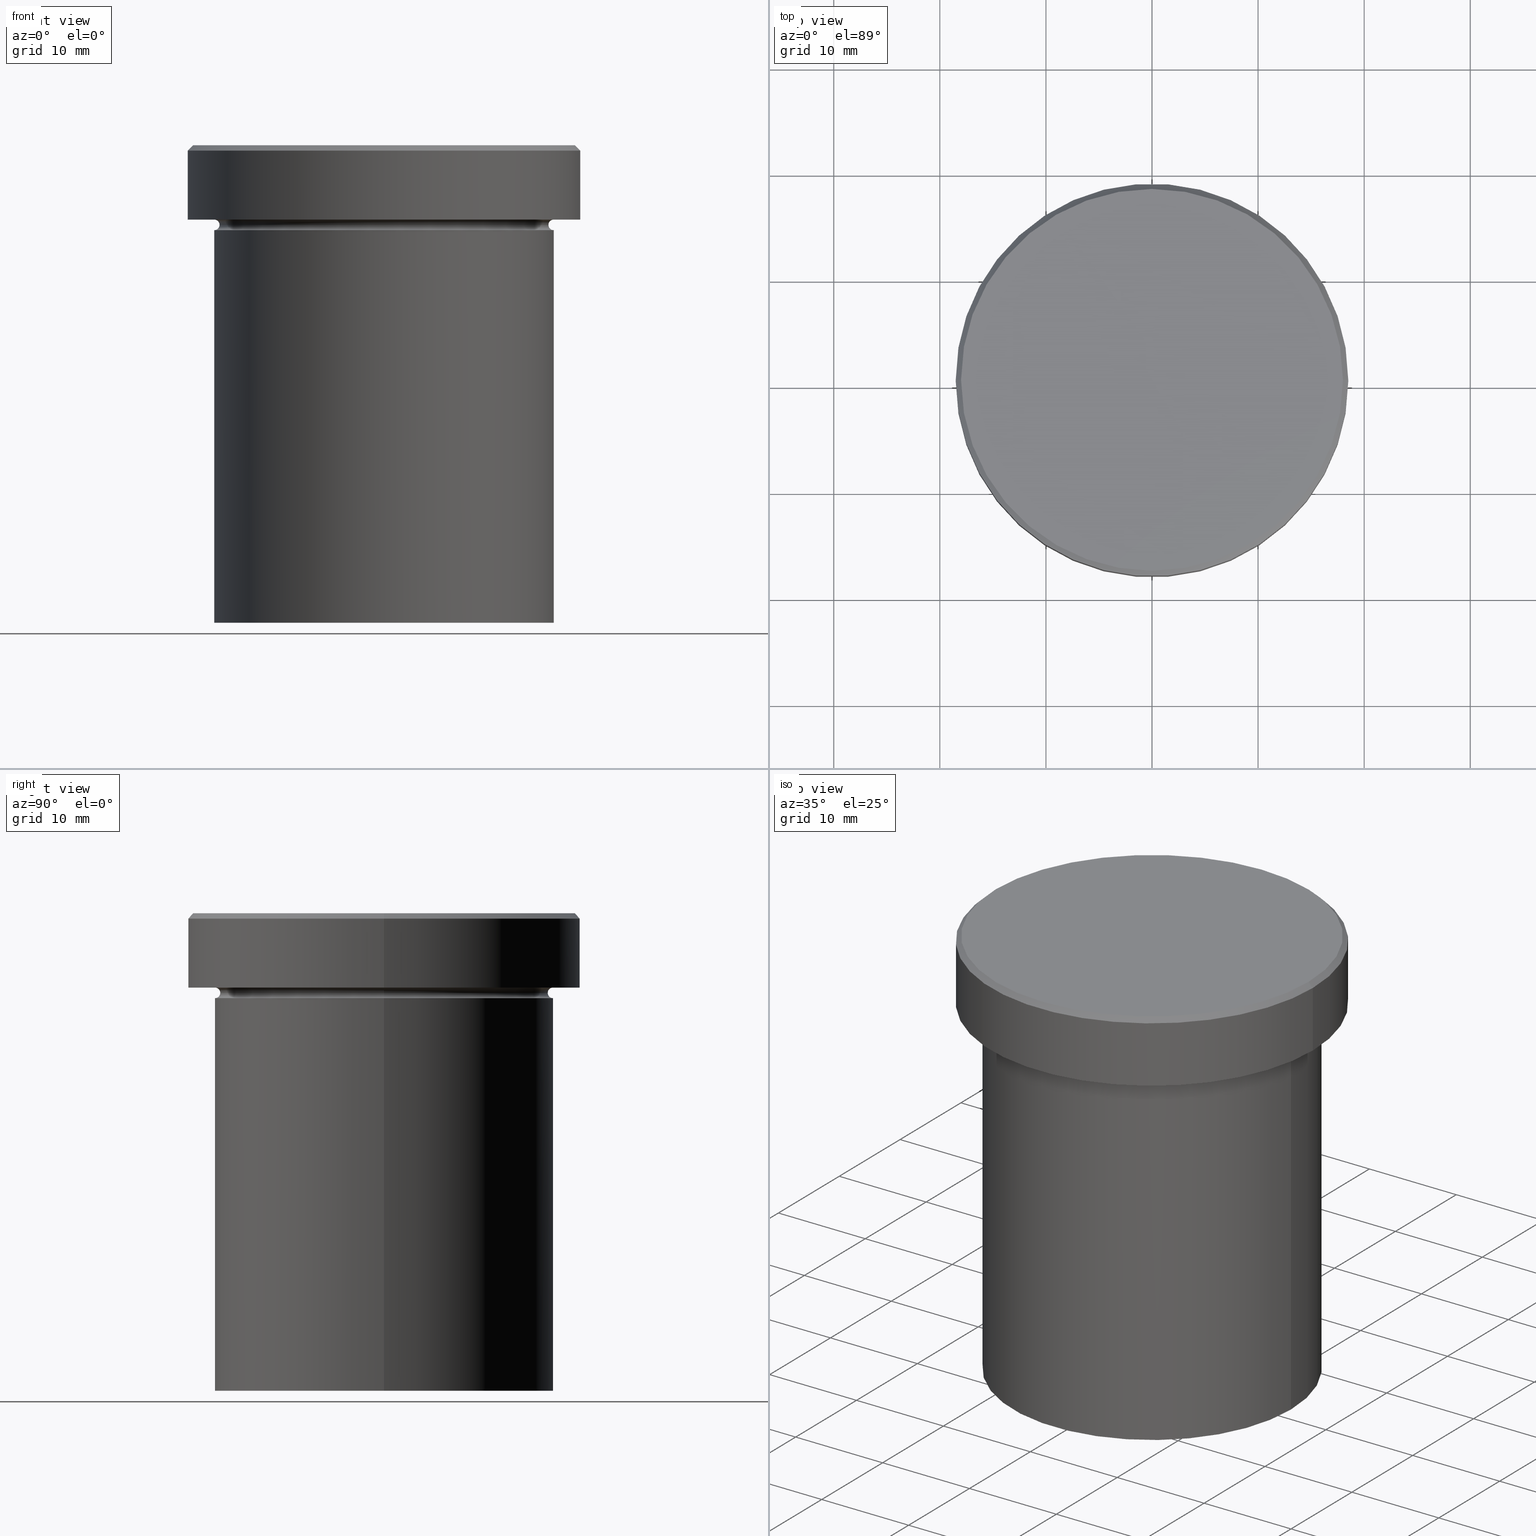
[diagram: canonical four-view strip — front | top / right | iso, engineering-drawing reading convention]
A machine part, canonical four-view strip (front | top / right | iso — engineering-drawing reading convention). The complete STEP part file that produces these views, byte-faithful:
ISO-10303-21;
HEADER;
FILE_DESCRIPTION (( 'STEP AP203' ),
    '1' );
FILE_NAME ('5bd3.STEP',
    '2024-01-02T18:55:18',
    ( '' ),
    ( '' ),
    'SwSTEP 2.0',
    'SolidWorks 2019',
    '' );
FILE_SCHEMA (( 'CONFIG_CONTROL_DESIGN' ));
ENDSEC;

DATA;
#1 = CIRCLE ( 'NONE', #166, 0.5000000000000004441 ) ;
#2 = CC_DESIGN_SECURITY_CLASSIFICATION ( #80, ( #141 ) ) ;
#3 = CARTESIAN_POINT ( 'NONE',  ( 0.000000000000000000, 16.00000000000000000, -45.00000000000000000 ) ) ;
#4 = EDGE_CURVE ( 'NONE', #241, #176, #19, .T. ) ;
#5 = DIRECTION ( 'NONE',  ( 1.000000000000000000, 0.000000000000000000, 0.000000000000000000 ) ) ;
#6 = DIRECTION ( 'NONE',  ( 0.000000000000000000, 0.000000000000000000, -1.000000000000000000 ) ) ;
#7 = ORIENTED_EDGE ( 'NONE', *, *, #4, .F. ) ;
#8 = FACE_OUTER_BOUND ( 'NONE', #313, .T. ) ;
#9 = DIRECTION ( 'NONE',  ( 1.000000000000000000, 0.000000000000000000, 0.000000000000000000 ) ) ;
#10 = ADVANCED_FACE ( 'NONE', ( #231 ), #34, .T. ) ;
#11 = AXIS2_PLACEMENT_3D ( 'NONE', #155, #395, #126 ) ;
#12 = AXIS2_PLACEMENT_3D ( 'NONE', #202, #295, #211 ) ;
#13 = CC_DESIGN_APPROVAL ( #326, ( #80 ) ) ;
#14 = CARTESIAN_POINT ( 'NONE',  ( -16.00000000000000000, 1.959434878635765131E-15, -7.500000000000000000 ) ) ;
#15 = CARTESIAN_POINT ( 'NONE',  ( -18.00000000000001066, 0.000000000000000000, 0.000000000000000000 ) ) ;
#16 = APPLICATION_CONTEXT ( 'configuration controlled 3d designs of mechanical parts and assemblies' ) ;
#17 = PERSON_AND_ORGANIZATION_ROLE ( 'creator' ) ;
#18 = CYLINDRICAL_SURFACE ( 'NONE', #304, 18.50000000000000000 ) ;
#19 = LINE ( 'NONE', #84, #355 ) ;
#20 = DIRECTION ( 'NONE',  ( -0.000000000000000000, -0.000000000000000000, 1.000000000000000000 ) ) ;
#21 = PERSON_AND_ORGANIZATION_ROLE ( 'classification_officer' ) ;
#22 = CIRCLE ( 'NONE', #106, 16.00000000000000000 ) ;
#23 = ORIENTED_EDGE ( 'NONE', *, *, #335, .T. ) ;
#24 = AXIS2_PLACEMENT_3D ( 'NONE', #294, #258, #205 ) ;
#25 = DATE_AND_TIME ( #305, #251 ) ;
#26 = VERTEX_POINT ( 'NONE', #151 ) ;
#27 = EDGE_CURVE ( 'NONE', #142, #243, #73, .T. ) ;
#28 = TOROIDAL_SURFACE ( 'NONE', #374, 16.00000000000000000, 0.5000000000000000000 ) ;
#29 = DIRECTION ( 'NONE',  ( 1.000000000000000000, 0.000000000000000000, 0.000000000000000000 ) ) ;
#30 = CC_DESIGN_DATE_AND_TIME_ASSIGNMENT ( #93, #242, ( #51 ) ) ;
#31 = EDGE_LOOP ( 'NONE', ( #187, #266, #70, #334 ) ) ;
#32 = PERSON_AND_ORGANIZATION_ROLE ( 'design_supplier' ) ;
#33 = ORIENTED_EDGE ( 'NONE', *, *, #197, .F. ) ;
#34 = CONICAL_SURFACE ( 'NONE', #225, 18.00000000000001066, 0.7853981633974517207 ) ;
#35 = PERSON_AND_ORGANIZATION_ROLE ( 'creator' ) ;
#36 = VERTEX_POINT ( 'NONE', #383 ) ;
#37 = CC_DESIGN_PERSON_AND_ORGANIZATION_ASSIGNMENT ( #130, #32, ( #141 ) ) ;
#38 = EDGE_CURVE ( 'NONE', #301, #243, #109, .T. ) ;
#39 = CARTESIAN_POINT ( 'NONE',  ( 0.000000000000000000, 0.000000000000000000, -6.999999999999998224 ) ) ;
#40 = DIRECTION ( 'NONE',  ( -0.000000000000000000, -1.000000000000000000, -0.000000000000000000 ) ) ;
#41 = DIRECTION ( 'NONE',  ( 0.000000000000000000, 0.000000000000000000, -1.000000000000000000 ) ) ;
#42 = TOROIDAL_SURFACE ( 'NONE', #345, 16.00000000000000000, 0.5000000000000000000 ) ;
#43 = DIRECTION ( 'NONE',  ( 1.000000000000000000, 0.000000000000000000, 0.000000000000000000 ) ) ;
#44 = LINE ( 'NONE', #228, #50 ) ;
#45 = DIRECTION ( 'NONE',  ( -0.000000000000000000, -0.000000000000000000, 1.000000000000000000 ) ) ;
#46 = CALENDAR_DATE ( 2024, 2, 1 ) ;
#47 = FACE_BOUND ( 'NONE', #332, .T. ) ;
#48 = EDGE_CURVE ( 'NONE', #142, #36, #191, .T. ) ;
#49 = FACE_OUTER_BOUND ( 'NONE', #31, .T. ) ;
#50 = VECTOR ( 'NONE', #108, 1000.000000000000000 ) ;
#51 = PRODUCT_DEFINITION ( 'NEZN�M�', '', #141, #63 ) ;
#52 = COORDINATED_UNIVERSAL_TIME_OFFSET ( 1, 0, .AHEAD. ) ;
#53 = ORIENTED_EDGE ( 'NONE', *, *, #48, .T. ) ;
#54 = CARTESIAN_POINT ( 'NONE',  ( 0.000000000000000000, 18.50000000000000000, -6.999999999999999112 ) ) ;
#55 = EDGE_CURVE ( 'NONE', #135, #176, #185, .T. ) ;
#56 = APPROVAL_STATUS ( 'not_yet_approved' ) ;
#57 = PERSON_AND_ORGANIZATION ( #173, #226 ) ;
#58 = VERTEX_POINT ( 'NONE', #306 ) ;
#59 = MANIFOLD_SOLID_BREP ( 'Zkosen�1', #148 ) ;
#60 = DATE_AND_TIME ( #359, #366 ) ;
#61 = VECTOR ( 'NONE', #87, 1000.000000000000000 ) ;
#62 = CIRCLE ( 'NONE', #387, 18.00000000000001066 ) ;
#63 = DESIGN_CONTEXT ( 'detailed design', #16, 'design' ) ;
#64 = ORIENTED_EDGE ( 'NONE', *, *, #270, .F. ) ;
#65 = EDGE_CURVE ( 'NONE', #124, #92, #68, .T. ) ;
#66 = EDGE_LOOP ( 'NONE', ( #161, #100 ) ) ;
#67 = PERSON_AND_ORGANIZATION ( #173, #226 ) ;
#68 = CIRCLE ( 'NONE', #291, 16.00000000000000000 ) ;
#69 = TOROIDAL_SURFACE ( 'NONE', #256, 16.00000000000000000, 0.5000000000000000000 ) ;
#70 = ORIENTED_EDGE ( 'NONE', *, *, #55, .T. ) ;
#71 = DIRECTION ( 'NONE',  ( 1.000000000000000000, 0.000000000000000000, 0.000000000000000000 ) ) ;
#72 = ORIENTED_EDGE ( 'NONE', *, *, #55, .F. ) ;
#73 = CIRCLE ( 'NONE', #351, 0.5000000000000004441 ) ;
#74 = AXIS2_PLACEMENT_3D ( 'NONE', #75, #45, #171 ) ;
#75 = CARTESIAN_POINT ( 'NONE',  ( 0.000000000000000000, 0.000000000000000000, 0.000000000000000000 ) ) ;
#76 = CARTESIAN_POINT ( 'NONE',  ( 18.00000000000001066, 2.234980408443920004E-15, 0.000000000000000000 ) ) ;
#77 = FACE_OUTER_BOUND ( 'NONE', #66, .T. ) ;
#78 =( NAMED_UNIT ( * ) PLANE_ANGLE_UNIT ( ) SI_UNIT ( $, .RADIAN. ) );
#79 = CARTESIAN_POINT ( 'NONE',  ( 0.000000000000000000, 0.000000000000000000, -45.00000000000000000 ) ) ;
#80 = SECURITY_CLASSIFICATION ( '', '', #96 ) ;
#81 = CC_DESIGN_PERSON_AND_ORGANIZATION_ASSIGNMENT ( #67, #35, ( #141 ) ) ;
#82 = EDGE_CURVE ( 'NONE', #26, #135, #121, .T. ) ;
#83 = ORIENTED_EDGE ( 'NONE', *, *, #382, .F. ) ;
#84 = CARTESIAN_POINT ( 'NONE',  ( 18.00000000000001066, 2.204364238465237006E-15, 0.000000000000000000 ) ) ;
#85 = AXIS2_PLACEMENT_3D ( 'NONE', #54, #112, #208 ) ;
#86 = CC_DESIGN_PERSON_AND_ORGANIZATION_ASSIGNMENT ( #328, #17, ( #51 ) ) ;
#87 = DIRECTION ( 'NONE',  ( -0.000000000000000000, -0.000000000000000000, 1.000000000000000000 ) ) ;
#88 = ORIENTED_EDGE ( 'NONE', *, *, #159, .F. ) ;
#89 = CIRCLE ( 'NONE', #284, 15.50000000000000000 ) ;
#90 = DIRECTION ( 'NONE',  ( 1.000000000000000000, 0.000000000000000000, 0.000000000000000000 ) ) ;
#91 = DIRECTION ( 'NONE',  ( -1.000000000000000000, 0.000000000000000000, -0.000000000000000000 ) ) ;
#92 = VERTEX_POINT ( 'NONE', #333 ) ;
#93 = DATE_AND_TIME ( #384, #204 ) ;
#94 = CARTESIAN_POINT ( 'NONE',  ( 16.00000000000000000, 0.000000000000000000, -45.00000000000000000 ) ) ;
#95 = VERTEX_POINT ( 'NONE', #94 ) ;
#96 = SECURITY_CLASSIFICATION_LEVEL ( 'unclassified' ) ;
#97 = CARTESIAN_POINT ( 'NONE',  ( 0.000000000000000000, 0.000000000000000000, -7.500000000000000000 ) ) ;
#98 = EDGE_CURVE ( 'NONE', #36, #92, #119, .T. ) ;
#99 = VECTOR ( 'NONE', #116, 1000.000000000000000 ) ;
#100 = ORIENTED_EDGE ( 'NONE', *, *, #362, .F. ) ;
#101 = ORIENTED_EDGE ( 'NONE', *, *, #399, .T. ) ;
#102 = DATE_AND_TIME ( #339, #218 ) ;
#103 = EDGE_LOOP ( 'NONE', ( #381, #336, #110, #269 ) ) ;
#104 = APPROVAL ( #212, 'NEUR�EN�' ) ;
#105 = FACE_OUTER_BOUND ( 'NONE', #311, .T. ) ;
#106 = AXIS2_PLACEMENT_3D ( 'NONE', #252, #288, #139 ) ;
#107 = CIRCLE ( 'NONE', #315, 16.00000000000000000 ) ;
#108 = DIRECTION ( 'NONE',  ( -0.000000000000000000, -0.000000000000000000, 1.000000000000000000 ) ) ;
#109 = LINE ( 'NONE', #144, #213 ) ;
#110 = ORIENTED_EDGE ( 'NONE', *, *, #317, .T. ) ;
#111 = UNCERTAINTY_MEASURE_WITH_UNIT (LENGTH_MEASURE( 1.000000000000000082E-05 ), #299, 'distance_accuracy_value', 'NONE');
#112 = DIRECTION ( 'NONE',  ( 0.000000000000000000, 0.000000000000000000, -1.000000000000000000 ) ) ;
#113 = AXIS2_PLACEMENT_3D ( 'NONE', #97, #195, #163 ) ;
#114 = ORIENTED_EDGE ( 'NONE', *, *, #380, .F. ) ;
#115 = APPLICATION_PROTOCOL_DEFINITION ( 'international standard', 'config_control_design', 1994, #16 ) ;
#116 = DIRECTION ( 'NONE',  ( -0.000000000000000000, -0.000000000000000000, 1.000000000000000000 ) ) ;
#117 = CARTESIAN_POINT ( 'NONE',  ( -16.00000000000000000, 1.959434878635765131E-15, -45.00000000000000000 ) ) ;
#118 = DIRECTION ( 'NONE',  ( -0.000000000000000000, -0.000000000000000000, 1.000000000000000000 ) ) ;
#119 = CIRCLE ( 'NONE', #178, 0.5000000000000004441 ) ;
#120 = CIRCLE ( 'NONE', #245, 18.50000000000000000 ) ;
#121 = LINE ( 'NONE', #360, #61 ) ;
#122 = APPROVAL_ROLE ( '' ) ;
#123 = ORIENTED_EDGE ( 'NONE', *, *, #380, .T. ) ;
#124 = VERTEX_POINT ( 'NONE', #409 ) ;
#125 = EDGE_CURVE ( 'NONE', #142, #124, #1, .T. ) ;
#126 = DIRECTION ( 'NONE',  ( 1.000000000000000000, 0.000000000000000000, 0.000000000000000000 ) ) ;
#127 =( GEOMETRIC_REPRESENTATION_CONTEXT ( 3 ) GLOBAL_UNCERTAINTY_ASSIGNED_CONTEXT ( ( #111 ) ) GLOBAL_UNIT_ASSIGNED_CONTEXT ( ( #299, #78, #267 ) ) REPRESENTATION_CONTEXT ( 'NONE', 'WORKASPACE' ) );
#128 = ORIENTED_EDGE ( 'NONE', *, *, #125, .T. ) ;
#129 = ADVANCED_FACE ( 'NONE', ( #316 ), #278, .T. ) ;
#130 = PERSON_AND_ORGANIZATION ( #173, #226 ) ;
#131 = ADVANCED_FACE ( 'NONE', ( #376 ), #283, .F. ) ;
#132 = PRODUCT ( '5bd3', '5bd3', '', ( #352 ) ) ;
#133 = CARTESIAN_POINT ( 'NONE',  ( 0.000000000000000000, 0.000000000000000000, 0.000000000000000000 ) ) ;
#134 = DIRECTION ( 'NONE',  ( 0.000000000000000000, 0.000000000000000000, -1.000000000000000000 ) ) ;
#135 = VERTEX_POINT ( 'NONE', #318 ) ;
#136 = DIRECTION ( 'NONE',  ( -0.000000000000000000, -0.000000000000000000, 1.000000000000000000 ) ) ;
#137 = VECTOR ( 'NONE', #145, 1000.000000000000114 ) ;
#138 = PLANE ( 'NONE',  #341 ) ;
#139 = DIRECTION ( 'NONE',  ( -1.000000000000000000, 0.000000000000000000, 0.000000000000000000 ) ) ;
#140 = EDGE_CURVE ( 'NONE', #176, #135, #365, .T. ) ;
#141 = PRODUCT_DEFINITION_FORMATION_WITH_SPECIFIED_SOURCE ( 'LIBOVOLN�', '', #132, .NOT_KNOWN. ) ;
#142 = VERTEX_POINT ( 'NONE', #285 ) ;
#143 = DIRECTION ( 'NONE',  ( -1.000000000000000000, 1.224646799147349509E-16, 0.000000000000000000 ) ) ;
#144 = CARTESIAN_POINT ( 'NONE',  ( -16.00000000000000000, 1.959434878635765131E-15, 0.000000000000000000 ) ) ;
#145 = DIRECTION ( 'NONE',  ( -0.7071067811865500152, 0.000000000000000000, -0.7071067811865451302 ) ) ;
#146 = ORIENTED_EDGE ( 'NONE', *, *, #362, .T. ) ;
#147 = CARTESIAN_POINT ( 'NONE',  ( 0.000000000000000000, 0.000000000000000000, 0.000000000000000000 ) ) ;
#148 = CLOSED_SHELL ( 'NONE', ( #349, #131, #377, #184, #370, #172, #407, #194, #281, #129, #255, #227, #10 ) ) ;
#149 = COORDINATED_UNIVERSAL_TIME_OFFSET ( 1, 0, .AHEAD. ) ;
#150 = CC_DESIGN_APPROVAL ( #337, ( #141 ) ) ;
#151 = CARTESIAN_POINT ( 'NONE',  ( -18.50000000000000000, 2.265596578422603396E-15, -6.999999999999998224 ) ) ;
#152 = ORIENTED_EDGE ( 'NONE', *, *, #27, .F. ) ;
#153 = CARTESIAN_POINT ( 'NONE',  ( 0.000000000000000000, 0.000000000000000000, -6.999999999999999112 ) ) ;
#154 = DIRECTION ( 'NONE',  ( 1.000000000000000000, 0.000000000000000000, 0.000000000000000000 ) ) ;
#155 = CARTESIAN_POINT ( 'NONE',  ( 0.000000000000000000, 0.000000000000000000, -0.4999999999999865663 ) ) ;
#156 = ORIENTED_EDGE ( 'NONE', *, *, #4, .T. ) ;
#157 = EDGE_LOOP ( 'NONE', ( #404, #146, #271, #249 ) ) ;
#158 = CIRCLE ( 'NONE', #24, 16.00000000000000000 ) ;
#159 = EDGE_CURVE ( 'NONE', #92, #124, #22, .T. ) ;
#160 = DIRECTION ( 'NONE',  ( -0.000000000000000000, -0.000000000000000000, 1.000000000000000000 ) ) ;
#161 = ORIENTED_EDGE ( 'NONE', *, *, #240, .F. ) ;
#162 = DIRECTION ( 'NONE',  ( 1.000000000000000000, 0.000000000000000000, 0.000000000000000000 ) ) ;
#163 = DIRECTION ( 'NONE',  ( -1.000000000000000000, 0.000000000000000000, 0.000000000000000000 ) ) ;
#164 = CARTESIAN_POINT ( 'NONE',  ( -16.00000000000000000, 1.959434878635765131E-15, -8.000000000000000000 ) ) ;
#165 = CARTESIAN_POINT ( 'NONE',  ( 0.000000000000000000, 0.000000000000000000, -0.4999999999999865663 ) ) ;
#166 = AXIS2_PLACEMENT_3D ( 'NONE', #192, #40, #134 ) ;
#167 = DIRECTION ( 'NONE',  ( 0.000000000000000000, -0.000000000000000000, 1.000000000000000000 ) ) ;
#168 = CARTESIAN_POINT ( 'NONE',  ( 0.000000000000000000, 0.000000000000000000, 0.000000000000000000 ) ) ;
#169 = ORIENTED_EDGE ( 'NONE', *, *, #270, .T. ) ;
#170 = DIRECTION ( 'NONE',  ( 0.7071067811865500152, 8.659560562354962440E-17, -0.7071067811865451302 ) ) ;
#171 = DIRECTION ( 'NONE',  ( 1.000000000000000000, 0.000000000000000000, 0.000000000000000000 ) ) ;
#172 = ADVANCED_FACE ( 'NONE', ( #105 ), #367, .T. ) ;
#173 = PERSON ( 'NEUR�EN�', 'NEUR�EN�', 'NEUR�EN�', ('NEUR�EN�'), ('NEUR�EN�'), ('NEUR�EN�') ) ;
#174 = DIRECTION ( 'NONE',  ( -1.000000000000000000, 0.000000000000000000, 0.000000000000000000 ) ) ;
#175 = APPROVAL_DATE_TIME ( #60, #326 ) ;
#176 = VERTEX_POINT ( 'NONE', #216 ) ;
#177 = ORIENTED_EDGE ( 'NONE', *, *, #38, .T. ) ;
#178 = AXIS2_PLACEMENT_3D ( 'NONE', #189, #198, #320 ) ;
#179 = FACE_OUTER_BOUND ( 'NONE', #181, .T. ) ;
#180 = CIRCLE ( 'NONE', #319, 18.50000000000000000 ) ;
#181 = EDGE_LOOP ( 'NONE', ( #406, #156, #72, #64 ) ) ;
#182 = DIRECTION ( 'NONE',  ( 0.000000000000000000, 0.000000000000000000, 1.000000000000000000 ) ) ;
#183 = CYLINDRICAL_SURFACE ( 'NONE', #186, 18.50000000000000000 ) ;
#184 = ADVANCED_FACE ( 'NONE', ( #220 ), #237, .T. ) ;
#185 = CIRCLE ( 'NONE', #11, 18.50000000000000000 ) ;
#186 = AXIS2_PLACEMENT_3D ( 'NONE', #330, #357, #154 ) ;
#187 = ORIENTED_EDGE ( 'NONE', *, *, #240, .T. ) ;
#188 = ORIENTED_EDGE ( 'NONE', *, *, #197, .T. ) ;
#189 = CARTESIAN_POINT ( 'NONE',  ( 16.00000000000000000, 1.959434878635765131E-15, -7.500000000000000000 ) ) ;
#190 = DIRECTION ( 'NONE',  ( -0.000000000000000000, -0.000000000000000000, 1.000000000000000000 ) ) ;
#191 = CIRCLE ( 'NONE', #12, 15.50000000000000000 ) ;
#192 = CARTESIAN_POINT ( 'NONE',  ( -16.00000000000000000, 0.000000000000000000, -7.500000000000000000 ) ) ;
#193 = APPROVAL_PERSON_ORGANIZATION ( #392, #326, #396 ) ;
#194 = ADVANCED_FACE ( 'NONE', ( #400 ), #183, .T. ) ;
#195 = DIRECTION ( 'NONE',  ( 0.000000000000000000, 0.000000000000000000, -1.000000000000000000 ) ) ;
#196 = CARTESIAN_POINT ( 'NONE',  ( 18.50000000000000000, 0.000000000000000000, -6.999999999999998224 ) ) ;
#197 = EDGE_CURVE ( 'NONE', #36, #142, #89, .T. ) ;
#198 = DIRECTION ( 'NONE',  ( -1.224646799147353207E-16, 1.000000000000000000, 0.000000000000000000 ) ) ;
#199 = DIRECTION ( 'NONE',  ( -0.000000000000000000, -0.000000000000000000, 1.000000000000000000 ) ) ;
#200 = DIRECTION ( 'NONE',  ( -0.000000000000000000, -0.000000000000000000, 1.000000000000000000 ) ) ;
#201 = DIRECTION ( 'NONE',  ( 0.000000000000000000, 0.000000000000000000, -1.000000000000000000 ) ) ;
#202 = CARTESIAN_POINT ( 'NONE',  ( 0.000000000000000000, 0.000000000000000000, -7.500000000000000000 ) ) ;
#203 = APPROVAL_ROLE ( '' ) ;
#204 = LOCAL_TIME ( 19, 55, 18.00000000000000000, #52 ) ;
#205 = DIRECTION ( 'NONE',  ( 1.000000000000000000, 0.000000000000000000, 0.000000000000000000 ) ) ;
#206 = CARTESIAN_POINT ( 'NONE',  ( 0.000000000000000000, 0.000000000000000000, -7.500000000000000000 ) ) ;
#207 = DIRECTION ( 'NONE',  ( -0.000000000000000000, -0.000000000000000000, 1.000000000000000000 ) ) ;
#208 = DIRECTION ( 'NONE',  ( -1.000000000000000000, 0.000000000000000000, -0.000000000000000000 ) ) ;
#209 = ORIENTED_EDGE ( 'NONE', *, *, #140, .F. ) ;
#210 = CARTESIAN_POINT ( 'NONE',  ( 0.000000000000000000, 0.000000000000000000, -6.999999999999998224 ) ) ;
#211 = DIRECTION ( 'NONE',  ( 1.000000000000000000, 0.000000000000000000, 0.000000000000000000 ) ) ;
#212 = APPROVAL_STATUS ( 'not_yet_approved' ) ;
#213 = VECTOR ( 'NONE', #207, 1000.000000000000000 ) ;
#214 = CONICAL_SURFACE ( 'NONE', #219, 18.00000000000001066, 0.7853981633974517207 ) ;
#215 = ORIENTED_EDGE ( 'NONE', *, *, #27, .T. ) ;
#216 = CARTESIAN_POINT ( 'NONE',  ( 18.50000000000000000, 0.000000000000000000, -0.4999999999999865663 ) ) ;
#217 = CC_DESIGN_PERSON_AND_ORGANIZATION_ASSIGNMENT ( #388, #230, ( #132 ) ) ;
#218 = LOCAL_TIME ( 19, 55, 18.00000000000000000, #254 ) ;
#219 = AXIS2_PLACEMENT_3D ( 'NONE', #238, #201, #261 ) ;
#220 = FACE_OUTER_BOUND ( 'NONE', #373, .T. ) ;
#221 = FACE_OUTER_BOUND ( 'NONE', #358, .T. ) ;
#222 = ORIENTED_EDGE ( 'NONE', *, *, #159, .T. ) ;
#223 = CARTESIAN_POINT ( 'NONE',  ( 0.000000000000000000, 0.000000000000000000, 0.000000000000000000 ) ) ;
#224 = DIRECTION ( 'NONE',  ( 1.000000000000000000, 0.000000000000000000, 0.000000000000000000 ) ) ;
#225 = AXIS2_PLACEMENT_3D ( 'NONE', #147, #302, #386 ) ;
#226 = ORGANIZATION ( 'NEUR�EN�', 'NEUR�EN�', '' ) ;
#227 = ADVANCED_FACE ( 'NONE', ( #342 ), #28, .F. ) ;
#228 = CARTESIAN_POINT ( 'NONE',  ( 18.50000000000000000, 0.000000000000000000, 0.000000000000000000 ) ) ;
#229 = DIRECTION ( 'NONE',  ( 1.000000000000000000, 0.000000000000000000, 0.000000000000000000 ) ) ;
#230 = PERSON_AND_ORGANIZATION_ROLE ( 'design_owner' ) ;
#231 = FACE_OUTER_BOUND ( 'NONE', #297, .T. ) ;
#232 = AXIS2_PLACEMENT_3D ( 'NONE', #168, #248, #71 ) ;
#233 = EDGE_CURVE ( 'NONE', #276, #243, #239, .T. ) ;
#234 = CARTESIAN_POINT ( 'NONE',  ( 0.000000000000000000, 0.000000000000000000, 0.000000000000000000 ) ) ;
#235 = DIRECTION ( 'NONE',  ( 1.000000000000000000, 0.000000000000000000, 0.000000000000000000 ) ) ;
#236 = PLANE ( 'NONE',  #85 ) ;
#237 = CYLINDRICAL_SURFACE ( 'NONE', #262, 16.00000000000000000 ) ;
#238 = CARTESIAN_POINT ( 'NONE',  ( 0.000000000000000000, 0.000000000000000000, 0.000000000000000000 ) ) ;
#239 = CIRCLE ( 'NONE', #272, 16.00000000000000000 ) ;
#240 = EDGE_CURVE ( 'NONE', #257, #26, #180, .T. ) ;
#241 = VERTEX_POINT ( 'NONE', #76 ) ;
#242 = DATE_TIME_ROLE ( 'creation_date' ) ;
#243 = VERTEX_POINT ( 'NONE', #164 ) ;
#244 = ORIENTED_EDGE ( 'NONE', *, *, #391, .T. ) ;
#245 = AXIS2_PLACEMENT_3D ( 'NONE', #210, #20, #327 ) ;
#246 = EDGE_LOOP ( 'NONE', ( #372, #215, #244, #114 ) ) ;
#247 = CARTESIAN_POINT ( 'NONE',  ( 0.000000000000000000, 0.000000000000000000, -7.500000000000000000 ) ) ;
#248 = DIRECTION ( 'NONE',  ( -0.000000000000000000, -0.000000000000000000, 1.000000000000000000 ) ) ;
#249 = ORIENTED_EDGE ( 'NONE', *, *, #140, .T. ) ;
#250 = EDGE_CURVE ( 'NONE', #301, #95, #379, .T. ) ;
#251 = LOCAL_TIME ( 19, 55, 18.00000000000000000, #324 ) ;
#252 = CARTESIAN_POINT ( 'NONE',  ( 0.000000000000000000, 0.000000000000000000, -6.999999999999999112 ) ) ;
#253 = CARTESIAN_POINT ( 'NONE',  ( 0.000000000000000000, 0.000000000000000000, 0.000000000000000000 ) ) ;
#254 = COORDINATED_UNIVERSAL_TIME_OFFSET ( 1, 0, .AHEAD. ) ;
#255 = ADVANCED_FACE ( 'NONE', ( #221 ), #69, .F. ) ;
#256 = AXIS2_PLACEMENT_3D ( 'NONE', #322, #199, #321 ) ;
#257 = VERTEX_POINT ( 'NONE', #196 ) ;
#258 = DIRECTION ( 'NONE',  ( -0.000000000000000000, -0.000000000000000000, 1.000000000000000000 ) ) ;
#259 = DIRECTION ( 'NONE',  ( -0.000000000000000000, -0.000000000000000000, 1.000000000000000000 ) ) ;
#260 = APPLICATION_PROTOCOL_DEFINITION ( 'international standard', 'config_control_design', 1994, #398 ) ;
#261 = DIRECTION ( 'NONE',  ( -1.000000000000000000, 0.000000000000000000, 0.000000000000000000 ) ) ;
#262 = AXIS2_PLACEMENT_3D ( 'NONE', #133, #160, #235 ) ;
#263 = EDGE_CURVE ( 'NONE', #257, #176, #44, .T. ) ;
#264 = CIRCLE ( 'NONE', #277, 0.5000000000000004441 ) ;
#265 = CARTESIAN_POINT ( 'NONE',  ( 16.00000000000000000, 0.000000000000000000, 0.000000000000000000 ) ) ;
#266 = ORIENTED_EDGE ( 'NONE', *, *, #82, .T. ) ;
#267 =( NAMED_UNIT ( * ) SI_UNIT ( $, .STERADIAN. ) SOLID_ANGLE_UNIT ( ) );
#268 = COORDINATED_UNIVERSAL_TIME_OFFSET ( 1, 0, .AHEAD. ) ;
#269 = ORIENTED_EDGE ( 'NONE', *, *, #391, .F. ) ;
#270 = EDGE_CURVE ( 'NONE', #58, #135, #394, .T. ) ;
#271 = ORIENTED_EDGE ( 'NONE', *, *, #263, .T. ) ;
#272 = AXIS2_PLACEMENT_3D ( 'NONE', #300, #190, #229 ) ;
#273 = PRODUCT_DEFINITION_SHAPE ( 'NONE', 'NONE',  #51 ) ;
#274 = ORIENTED_EDGE ( 'NONE', *, *, #125, .F. ) ;
#275 = ORIENTED_EDGE ( 'NONE', *, *, #233, .T. ) ;
#276 = VERTEX_POINT ( 'NONE', #389 ) ;
#277 = AXIS2_PLACEMENT_3D ( 'NONE', #312, #369, #41 ) ;
#278 = CYLINDRICAL_SURFACE ( 'NONE', #232, 16.00000000000000000 ) ;
#279 = EDGE_LOOP ( 'NONE', ( #53, #363, #309, #274 ) ) ;
#280 = DIRECTION ( 'NONE',  ( -0.000000000000000000, -0.000000000000000000, 1.000000000000000000 ) ) ;
#281 = ADVANCED_FACE ( 'NONE', ( #47, #77 ), #236, .T. ) ;
#282 = DIRECTION ( 'NONE',  ( -0.000000000000000000, -0.000000000000000000, 1.000000000000000000 ) ) ;
#283 = TOROIDAL_SURFACE ( 'NONE', #113, 16.00000000000000000, 0.5000000000000000000 ) ;
#284 = AXIS2_PLACEMENT_3D ( 'NONE', #247, #308, #29 ) ;
#285 = CARTESIAN_POINT ( 'NONE',  ( -15.50000000000000000, 1.928818708657081344E-15, -7.500000000000000000 ) ) ;
#286 = CARTESIAN_POINT ( 'NONE',  ( 0.000000000000000000, 0.000000000000000000, -45.00000000000000000 ) ) ;
#287 = SHAPE_DEFINITION_REPRESENTATION ( #273, #298 ) ;
#288 = DIRECTION ( 'NONE',  ( -0.000000000000000000, -0.000000000000000000, 1.000000000000000000 ) ) ;
#289 = DIRECTION ( 'NONE',  ( 1.000000000000000000, 0.000000000000000000, 0.000000000000000000 ) ) ;
#290 = EDGE_LOOP ( 'NONE', ( #401, #188, #128, #88 ) ) ;
#291 = AXIS2_PLACEMENT_3D ( 'NONE', #153, #118, #397 ) ;
#292 = AXIS2_PLACEMENT_3D ( 'NONE', #234, #182, #354 ) ;
#293 = CIRCLE ( 'NONE', #74, 18.00000000000001066 ) ;
#294 = CARTESIAN_POINT ( 'NONE',  ( 0.000000000000000000, 0.000000000000000000, -8.000000000000000000 ) ) ;
#295 = DIRECTION ( 'NONE',  ( -0.000000000000000000, -0.000000000000000000, 1.000000000000000000 ) ) ;
#296 = APPROVAL_DATE_TIME ( #25, #104 ) ;
#297 = EDGE_LOOP ( 'NONE', ( #7, #83, #169, #209 ) ) ;
#298 = ADVANCED_BREP_SHAPE_REPRESENTATION ( '5bd3', ( #59, #292 ), #127 ) ;
#299 =( LENGTH_UNIT ( ) NAMED_UNIT ( * ) SI_UNIT ( .MILLI., .METRE. ) );
#300 = CARTESIAN_POINT ( 'NONE',  ( 0.000000000000000000, 0.000000000000000000, -8.000000000000000000 ) ) ;
#301 = VERTEX_POINT ( 'NONE', #117 ) ;
#302 = DIRECTION ( 'NONE',  ( 0.000000000000000000, 0.000000000000000000, -1.000000000000000000 ) ) ;
#303 = ORIENTED_EDGE ( 'NONE', *, *, #233, .F. ) ;
#304 = AXIS2_PLACEMENT_3D ( 'NONE', #347, #200, #9 ) ;
#305 = CALENDAR_DATE ( 2024, 2, 1 ) ;
#306 = CARTESIAN_POINT ( 'NONE',  ( -18.00000000000001066, 0.000000000000000000, 0.000000000000000000 ) ) ;
#307 = DATE_AND_TIME ( #46, #405 ) ;
#308 = DIRECTION ( 'NONE',  ( -0.000000000000000000, -0.000000000000000000, 1.000000000000000000 ) ) ;
#309 = ORIENTED_EDGE ( 'NONE', *, *, #65, .F. ) ;
#310 = APPROVAL_PERSON_ORGANIZATION ( #57, #337, #122 ) ;
#311 = EDGE_LOOP ( 'NONE', ( #368, #338 ) ) ;
#312 = CARTESIAN_POINT ( 'NONE',  ( 16.00000000000000000, 0.000000000000000000, -7.500000000000000000 ) ) ;
#313 = EDGE_LOOP ( 'NONE', ( #408, #101 ) ) ;
#314 = APPROVAL_DATE_TIME ( #102, #337 ) ;
#315 = AXIS2_PLACEMENT_3D ( 'NONE', #79, #259, #353 ) ;
#316 = FACE_OUTER_BOUND ( 'NONE', #103, .T. ) ;
#317 = EDGE_CURVE ( 'NONE', #95, #276, #350, .T. ) ;
#318 = CARTESIAN_POINT ( 'NONE',  ( -18.50000000000000000, 2.265596578422603396E-15, -0.4999999999999865663 ) ) ;
#319 = AXIS2_PLACEMENT_3D ( 'NONE', #39, #280, #162 ) ;
#320 = DIRECTION ( 'NONE',  ( -1.000000000000000000, -1.224646799147349509E-16, 0.000000000000000000 ) ) ;
#321 = DIRECTION ( 'NONE',  ( 1.000000000000000000, 0.000000000000000000, 0.000000000000000000 ) ) ;
#322 = CARTESIAN_POINT ( 'NONE',  ( 0.000000000000000000, 0.000000000000000000, -7.500000000000000000 ) ) ;
#323 = AXIS2_PLACEMENT_3D ( 'NONE', #286, #136, #224 ) ;
#324 = COORDINATED_UNIVERSAL_TIME_OFFSET ( 1, 0, .AHEAD. ) ;
#325 = DIRECTION ( 'NONE',  ( 0.000000000000000000, 0.000000000000000000, -1.000000000000000000 ) ) ;
#326 = APPROVAL ( #56, 'NEUR�EN�' ) ;
#327 = DIRECTION ( 'NONE',  ( 1.000000000000000000, 0.000000000000000000, 0.000000000000000000 ) ) ;
#328 = PERSON_AND_ORGANIZATION ( #173, #226 ) ;
#329 = CC_DESIGN_APPROVAL ( #104, ( #51 ) ) ;
#330 = CARTESIAN_POINT ( 'NONE',  ( 0.000000000000000000, 0.000000000000000000, 0.000000000000000000 ) ) ;
#331 = DATE_TIME_ROLE ( 'classification_date' ) ;
#332 = EDGE_LOOP ( 'NONE', ( #340, #222 ) ) ;
#333 = CARTESIAN_POINT ( 'NONE',  ( 16.00000000000000000, 1.959434878635765131E-15, -6.999999999999999112 ) ) ;
#334 = ORIENTED_EDGE ( 'NONE', *, *, #263, .F. ) ;
#335 = EDGE_CURVE ( 'NONE', #95, #301, #107, .T. ) ;
#336 = ORIENTED_EDGE ( 'NONE', *, *, #250, .T. ) ;
#337 = APPROVAL ( #361, 'NEUR�EN�' ) ;
#338 = ORIENTED_EDGE ( 'NONE', *, *, #250, .F. ) ;
#339 = CALENDAR_DATE ( 2024, 2, 1 ) ;
#340 = ORIENTED_EDGE ( 'NONE', *, *, #65, .T. ) ;
#341 = AXIS2_PLACEMENT_3D ( 'NONE', #253, #167, #5 ) ;
#342 = FACE_OUTER_BOUND ( 'NONE', #290, .T. ) ;
#343 = PERSON_AND_ORGANIZATION ( #173, #226 ) ;
#344 = AXIS2_PLACEMENT_3D ( 'NONE', #165, #371, #43 ) ;
#345 = AXIS2_PLACEMENT_3D ( 'NONE', #402, #364, #90 ) ;
#346 = PRODUCT_RELATED_PRODUCT_CATEGORY ( 'detail', '', ( #132 ) ) ;
#347 = CARTESIAN_POINT ( 'NONE',  ( 0.000000000000000000, 0.000000000000000000, 0.000000000000000000 ) ) ;
#348 = PERSON_AND_ORGANIZATION ( #173, #226 ) ;
#349 = ADVANCED_FACE ( 'NONE', ( #179 ), #214, .T. ) ;
#350 = LINE ( 'NONE', #265, #99 ) ;
#351 = AXIS2_PLACEMENT_3D ( 'NONE', #14, #390, #143 ) ;
#352 = MECHANICAL_CONTEXT ( 'NONE', #398, 'mechanical' ) ;
#353 = DIRECTION ( 'NONE',  ( 1.000000000000000000, 0.000000000000000000, 0.000000000000000000 ) ) ;
#354 = DIRECTION ( 'NONE',  ( 1.000000000000000000, 0.000000000000000000, 0.000000000000000000 ) ) ;
#355 = VECTOR ( 'NONE', #170, 1000.000000000000114 ) ;
#356 = APPROVAL_PERSON_ORGANIZATION ( #348, #104, #203 ) ;
#357 = DIRECTION ( 'NONE',  ( -0.000000000000000000, -0.000000000000000000, 1.000000000000000000 ) ) ;
#358 = EDGE_LOOP ( 'NONE', ( #152, #33, #123, #275 ) ) ;
#359 = CALENDAR_DATE ( 2024, 2, 1 ) ;
#360 = CARTESIAN_POINT ( 'NONE',  ( -18.50000000000000000, 2.265596578422603396E-15, 0.000000000000000000 ) ) ;
#361 = APPROVAL_STATUS ( 'not_yet_approved' ) ;
#362 = EDGE_CURVE ( 'NONE', #26, #257, #120, .T. ) ;
#363 = ORIENTED_EDGE ( 'NONE', *, *, #98, .T. ) ;
#364 = DIRECTION ( 'NONE',  ( -0.000000000000000000, -0.000000000000000000, 1.000000000000000000 ) ) ;
#365 = CIRCLE ( 'NONE', #344, 18.50000000000000000 ) ;
#366 = LOCAL_TIME ( 19, 55, 18.00000000000000000, #149 ) ;
#367 = PLANE ( 'NONE',  #403 ) ;
#368 = ORIENTED_EDGE ( 'NONE', *, *, #335, .F. ) ;
#369 = DIRECTION ( 'NONE',  ( 0.000000000000000000, -1.000000000000000000, 0.000000000000000000 ) ) ;
#370 = ADVANCED_FACE ( 'NONE', ( #49 ), #18, .T. ) ;
#371 = DIRECTION ( 'NONE',  ( 0.000000000000000000, 0.000000000000000000, -1.000000000000000000 ) ) ;
#372 = ORIENTED_EDGE ( 'NONE', *, *, #48, .F. ) ;
#373 = EDGE_LOOP ( 'NONE', ( #23, #177, #303, #393 ) ) ;
#374 = AXIS2_PLACEMENT_3D ( 'NONE', #206, #325, #174 ) ;
#375 = CC_DESIGN_DATE_AND_TIME_ASSIGNMENT ( #307, #331, ( #80 ) ) ;
#376 = FACE_OUTER_BOUND ( 'NONE', #279, .T. ) ;
#377 = ADVANCED_FACE ( 'NONE', ( #385 ), #42, .F. ) ;
#378 = CC_DESIGN_PERSON_AND_ORGANIZATION_ASSIGNMENT ( #343, #21, ( #80 ) ) ;
#379 = CIRCLE ( 'NONE', #323, 16.00000000000000000 ) ;
#380 = EDGE_CURVE ( 'NONE', #36, #276, #264, .T. ) ;
#381 = ORIENTED_EDGE ( 'NONE', *, *, #38, .F. ) ;
#382 = EDGE_CURVE ( 'NONE', #58, #241, #293, .T. ) ;
#383 = CARTESIAN_POINT ( 'NONE',  ( 15.50000000000000000, 0.000000000000000000, -7.500000000000000000 ) ) ;
#384 = CALENDAR_DATE ( 2024, 2, 1 ) ;
#385 = FACE_OUTER_BOUND ( 'NONE', #246, .T. ) ;
#386 = DIRECTION ( 'NONE',  ( -1.000000000000000000, 0.000000000000000000, 0.000000000000000000 ) ) ;
#387 = AXIS2_PLACEMENT_3D ( 'NONE', #223, #282, #289 ) ;
#388 = PERSON_AND_ORGANIZATION ( #173, #226 ) ;
#389 = CARTESIAN_POINT ( 'NONE',  ( 16.00000000000000000, 0.000000000000000000, -8.000000000000000000 ) ) ;
#390 = DIRECTION ( 'NONE',  ( 1.224646799147353207E-16, 1.000000000000000000, 0.000000000000000000 ) ) ;
#391 = EDGE_CURVE ( 'NONE', #243, #276, #158, .T. ) ;
#392 = PERSON_AND_ORGANIZATION ( #173, #226 ) ;
#393 = ORIENTED_EDGE ( 'NONE', *, *, #317, .F. ) ;
#394 = LINE ( 'NONE', #15, #137 ) ;
#395 = DIRECTION ( 'NONE',  ( 0.000000000000000000, 0.000000000000000000, -1.000000000000000000 ) ) ;
#396 = APPROVAL_ROLE ( '' ) ;
#397 = DIRECTION ( 'NONE',  ( -1.000000000000000000, 0.000000000000000000, 0.000000000000000000 ) ) ;
#398 = APPLICATION_CONTEXT ( 'configuration controlled 3d designs of mechanical parts and assemblies' ) ;
#399 = EDGE_CURVE ( 'NONE', #241, #58, #62, .T. ) ;
#400 = FACE_OUTER_BOUND ( 'NONE', #157, .T. ) ;
#401 = ORIENTED_EDGE ( 'NONE', *, *, #98, .F. ) ;
#402 = CARTESIAN_POINT ( 'NONE',  ( 0.000000000000000000, 0.000000000000000000, -7.500000000000000000 ) ) ;
#403 = AXIS2_PLACEMENT_3D ( 'NONE', #3, #6, #91 ) ;
#404 = ORIENTED_EDGE ( 'NONE', *, *, #82, .F. ) ;
#405 = LOCAL_TIME ( 19, 55, 18.00000000000000000, #268 ) ;
#406 = ORIENTED_EDGE ( 'NONE', *, *, #399, .F. ) ;
#407 = ADVANCED_FACE ( 'NONE', ( #8 ), #138, .T. ) ;
#408 = ORIENTED_EDGE ( 'NONE', *, *, #382, .T. ) ;
#409 = CARTESIAN_POINT ( 'NONE',  ( -16.00000000000000000, 0.000000000000000000, -6.999999999999999112 ) ) ;
ENDSEC;
END-ISO-10303-21;
